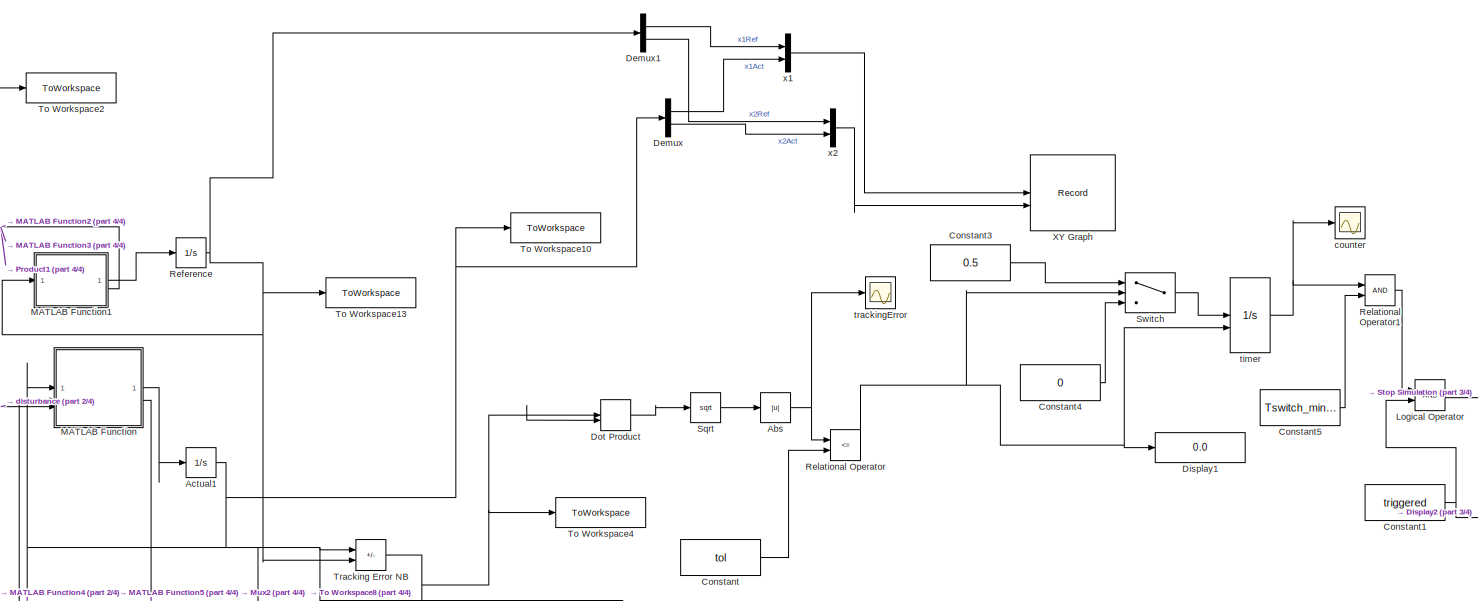
[diagram: root canvas - part 1/4, top center region]
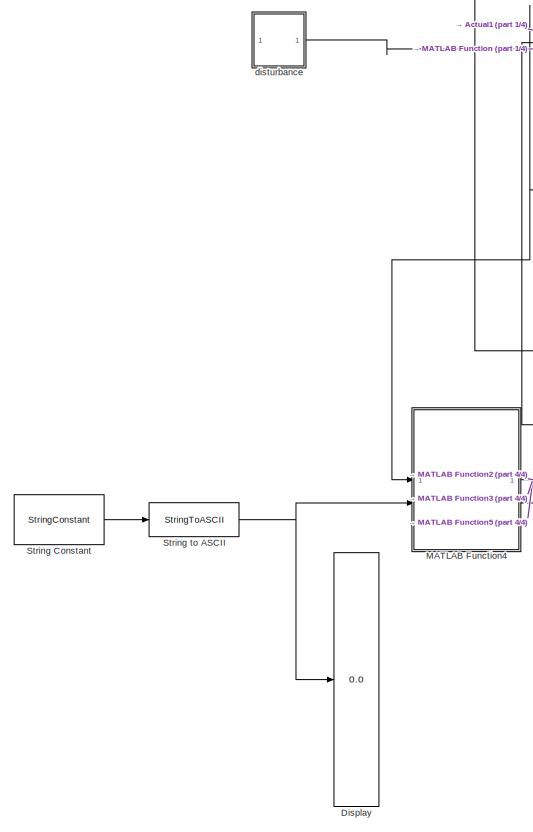
[diagram: root canvas - part 2/4, middle left region]
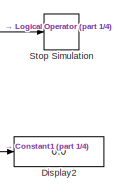
[diagram: root canvas - part 3/4, middle right region]
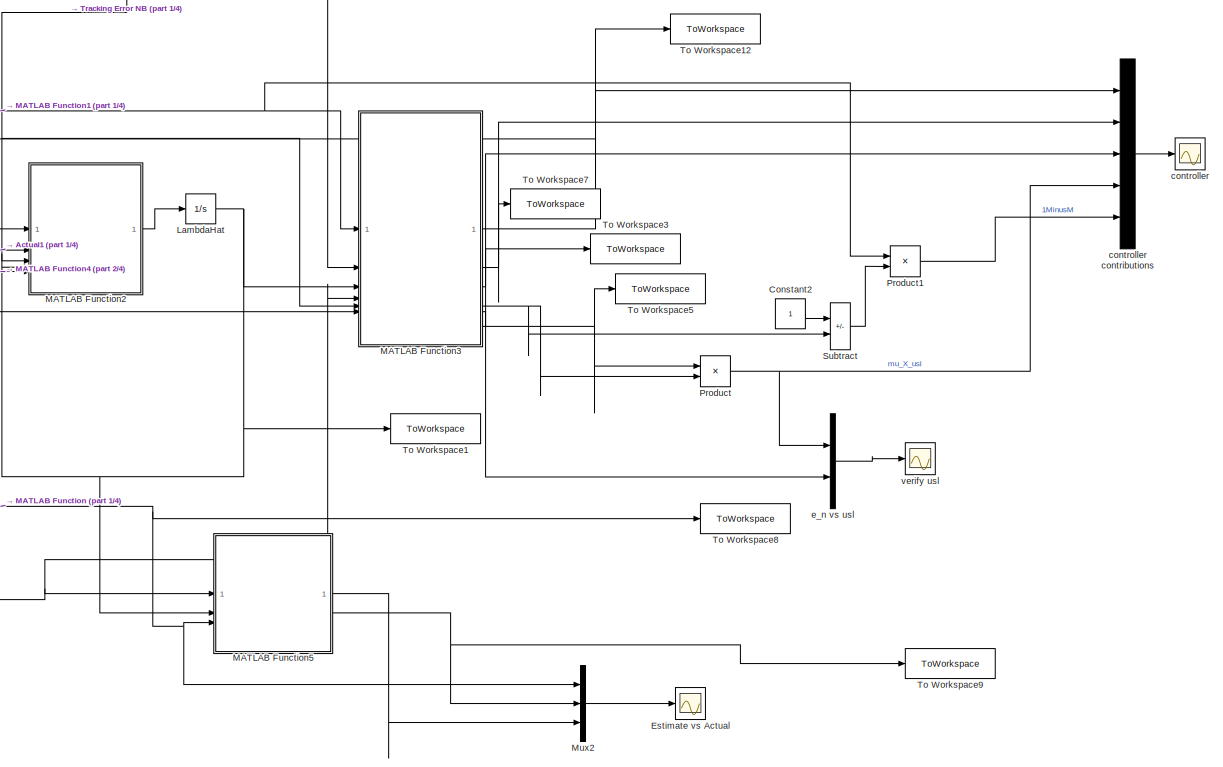
[diagram: root canvas - part 4/4, bottom center region]
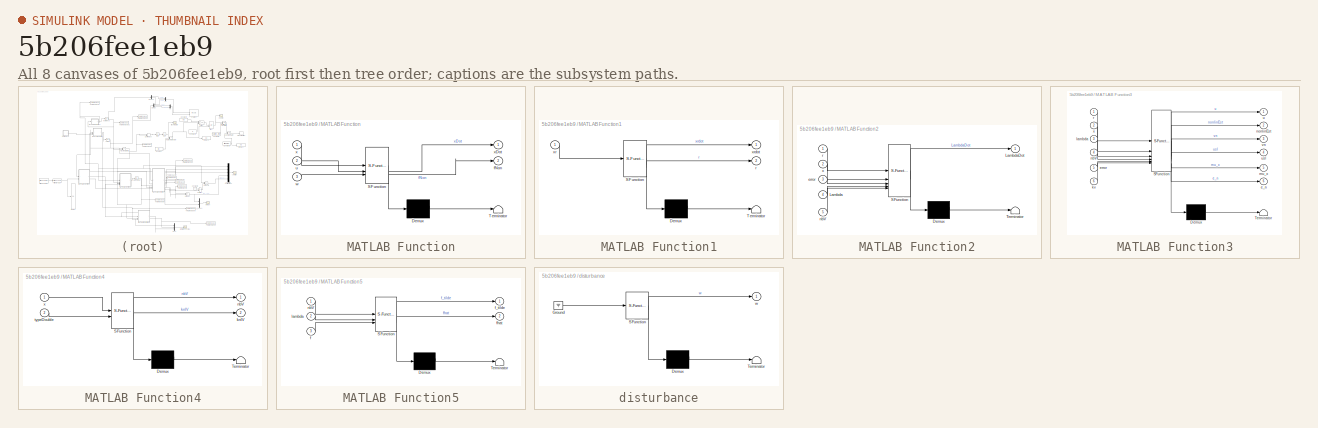
[diagram: thumbnail index - all 8 canvases of the model, root first then tree order]
MODEL slx_5b206fee1eb9
KIND model
CONFIG AbsTol = 1e-4
CONFIG EnableMultiTasking = off
CONFIG FixedStep = 1e-5
CONFIG MaxStep = auto
CONFIG MinStep = auto
CONFIG RelTol = 1e-3
CONFIG SampleTimeConstraint = Unconstrained
CONFIG SolverName = ode45
CONFIG StartTime = 0.0
CONFIG StopTime = 20
BLOCK [Abs] Abs
  SaturateOnIntegerOverflow = off
BLOCK [Integrator] Actual1
  InitialCondition = x0
BLOCK [Constant] Constant
  Value = tol
BLOCK [Constant] Constant1
  Value = triggered
BLOCK [Constant] Constant2
BLOCK [Constant] Constant3
  Value = 0.5
BLOCK [Constant] Constant4
  Value = 0
BLOCK [Constant] Constant5
  Value = Tswitch_min/2
BLOCK [Demux] Demux
  Outputs = 2
BLOCK [Demux] Demux1
  Outputs = 2
BLOCK [Display] Display
  Decimation = 1
BLOCK [Display] Display1
  Decimation = 1
BLOCK [Display] Display2
  Decimation = 1
BLOCK [DotProduct] Dot Product
  OutDataTypeStr = Inherit: Inherit via internal rule
BLOCK [Scope] Estimate vs Actual
  Floating = off
  NumInputPorts = 1
  ScopeSpecificationString = Simulink.scopes.TimeScopeBlockCfg('CurrentConfiguration', extmgr.ConfigurationSet(extmgr.Configuration('Core','General UI',true),extmgr.Configuration('Core','Source UI',true),extmgr.Configuration('Sources','WiredSimulink',true,'DataLoggingVariableName','ScopeData1'),extmgr.Configuration('Visuals','Time Domain',true,'SerializedDisplays',{struct('MinYLimReal','-16.5248','MaxYLimReal','16.65782','YLa...<+1580ch>
BLOCK [Integrator] LambdaHat
  InitialCondition = lambda0
BLOCK [Logic] Logical Operator
  AllPortsSameDT = off
  OutDataTypeStr = boolean
BLOCK [SubSystem] MATLAB Function
  ErrorFcn = Stateflow.Translate.translate
  PermitHierarchicalResolution = ExplicitOnly
  SFBlockType = MATLAB Function
  TreatAsAtomicUnit = on
BLOCK [Demux] MATLAB Function/ Demux 
  Outputs = 1
BLOCK [S-Function] MATLAB Function/ SFunction 
  EnableBusSupport = on
  FunctionName = sf_sfun
  Parameters = A,B,mu,noisy
  PortCounts = [3 3]
  SFcnIsStateOwnerBlock = off
  SFunctionDeploymentMode = off
  Tag = Stateflow S-Function 2
BLOCK [Terminator] MATLAB Function/ Terminator 
BLOCK [Outport] MATLAB Function/fNon
  Port = 2
BLOCK [Inport] MATLAB Function/u
  Port = 2
BLOCK [Inport] MATLAB Function/w
  Port = 3
BLOCK [Inport] MATLAB Function/x
BLOCK [Outport] MATLAB Function/xDot
BLOCK [SubSystem] MATLAB Function1
  ErrorFcn = Stateflow.Translate.translate
  PermitHierarchicalResolution = ExplicitOnly
  SFBlockType = MATLAB Function
  TreatAsAtomicUnit = on
BLOCK [Demux] MATLAB Function1/ Demux 
  Outputs = 1
BLOCK [S-Function] MATLAB Function1/ SFunction 
  EnableBusSupport = on
  FunctionName = sf_sfun
  Parameters = Ar,Br
  PortCounts = [1 3]
  SFcnIsStateOwnerBlock = off
  SFunctionDeploymentMode = off
  Tag = Stateflow S-Function 1
BLOCK [Terminator] MATLAB Function1/ Terminator 
BLOCK [Outport] MATLAB Function1/r
  Port = 2
BLOCK [Inport] MATLAB Function1/xr
BLOCK [Outport] MATLAB Function1/xrdot
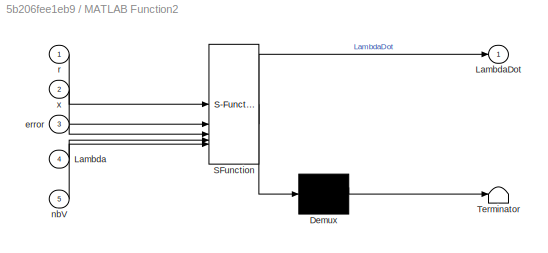
BLOCK [SubSystem] MATLAB Function2
  ErrorFcn = Stateflow.Translate.translate
  PermitHierarchicalResolution = ExplicitOnly
  SFBlockType = MATLAB Function
  TreatAsAtomicUnit = on
BLOCK [Demux] MATLAB Function2/ Demux 
  Outputs = 1
BLOCK [S-Function] MATLAB Function2/ SFunction 
  EnableBusSupport = on
  FunctionName = sf_sfun
  Parameters = B,P,epsilon,gf
  PortCounts = [5 2]
  SFcnIsStateOwnerBlock = off
  SFunctionDeploymentMode = off
  Tag = Stateflow S-Function 3
BLOCK [Terminator] MATLAB Function2/ Terminator 
BLOCK [Inport] MATLAB Function2/Lambda
  Port = 4
BLOCK [Outport] MATLAB Function2/LambdaDot
BLOCK [Inport] MATLAB Function2/error
  Port = 3
BLOCK [Inport] MATLAB Function2/nbV
  Port = 5
BLOCK [Inport] MATLAB Function2/r
BLOCK [Inport] MATLAB Function2/x
  Port = 2
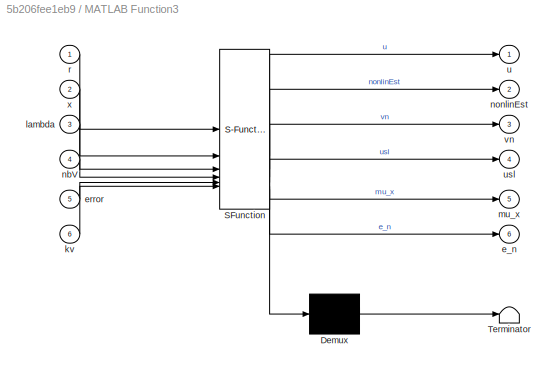
BLOCK [SubSystem] MATLAB Function3
  ErrorFcn = Stateflow.Translate.translate
  PermitHierarchicalResolution = ExplicitOnly
  SFBlockType = MATLAB Function
  TreatAsAtomicUnit = on
BLOCK [Demux] MATLAB Function3/ Demux 
  Outputs = 1
BLOCK [S-Function] MATLAB Function3/ SFunction 
  EnableBusSupport = on
  FunctionName = sf_sfun
  Parameters = B,P,Ro,del,epsilon,kx,norm_f,rmax
  PortCounts = [6 7]
  SFcnIsStateOwnerBlock = off
  SFunctionDeploymentMode = off
  Tag = Stateflow S-Function 4
BLOCK [Terminator] MATLAB Function3/ Terminator 
BLOCK [Outport] MATLAB Function3/e_n
  Port = 6
BLOCK [Inport] MATLAB Function3/error
  Port = 5
BLOCK [Inport] MATLAB Function3/kv
  Port = 6
BLOCK [Inport] MATLAB Function3/lambda
  Port = 3
BLOCK [Outport] MATLAB Function3/mu_x
  Port = 5
BLOCK [Inport] MATLAB Function3/nbV
  Port = 4
BLOCK [Outport] MATLAB Function3/nonlinEst
  Port = 2
BLOCK [Inport] MATLAB Function3/r
BLOCK [Outport] MATLAB Function3/u
BLOCK [Outport] MATLAB Function3/usl
  Port = 4
BLOCK [Outport] MATLAB Function3/vn
  Port = 3
BLOCK [Inport] MATLAB Function3/x
  Port = 2
BLOCK [SubSystem] MATLAB Function4
  ErrorFcn = Stateflow.Translate.translate
  PermitHierarchicalResolution = ExplicitOnly
  SFBlockType = MATLAB Function
  TreatAsAtomicUnit = on
BLOCK [Demux] MATLAB Function4/ Demux 
  Outputs = 1
BLOCK [S-Function] MATLAB Function4/ SFunction 
  EnableBusSupport = on
  FunctionName = sf_sfun
  Parameters = K,V,centers,par,scale
  PortCounts = [2 3]
  SFcnIsStateOwnerBlock = off
  SFunctionDeploymentMode = off
  Tag = Stateflow S-Function 5
BLOCK [Terminator] MATLAB Function4/ Terminator 
BLOCK [Outport] MATLAB Function4/knlV
  Port = 2
BLOCK [Outport] MATLAB Function4/nbV
BLOCK [Inport] MATLAB Function4/typeDouble
  Port = 2
BLOCK [Inport] MATLAB Function4/x
BLOCK [SubSystem] MATLAB Function5
  ErrorFcn = Stateflow.Translate.translate
  PermitHierarchicalResolution = ExplicitOnly
  SFBlockType = MATLAB Function
  TreatAsAtomicUnit = on
BLOCK [Demux] MATLAB Function5/ Demux 
  Outputs = 1
BLOCK [S-Function] MATLAB Function5/ SFunction 
  EnableBusSupport = on
  FunctionName = sf_sfun
  PortCounts = [3 3]
  SFcnIsStateOwnerBlock = off
  SFunctionDeploymentMode = off
  Tag = Stateflow S-Function 6
BLOCK [Terminator] MATLAB Function5/ Terminator 
BLOCK [Inport] MATLAB Function5/f
  Port = 3
BLOCK [Outport] MATLAB Function5/f_tilde
BLOCK [Outport] MATLAB Function5/fhat
  Port = 2
BLOCK [Inport] MATLAB Function5/lambda
  Port = 2
BLOCK [Inport] MATLAB Function5/nbV
BLOCK [Mux] Mux2
  DisplayOption = bar
  Inputs = 3
BLOCK [Product] Product
BLOCK [Product] Product1
BLOCK [Integrator] Reference
  InitialCondition = xr0
BLOCK [RelationalOperator] Relational Operator
  InputSameDT = off
  Operator = <=
  OutDataTypeStr = boolean
  RndMeth = Simplest
BLOCK [RelationalOperator] Relational Operator1
  InputSameDT = off
  OutDataTypeStr = boolean
  RndMeth = Simplest
BLOCK [Sqrt] Sqrt
BLOCK [Stop] Stop Simulation
BLOCK [StringConstant] String Constant
  String = type
BLOCK [StringToASCII] String to ASCII
BLOCK [Sum] Subtract
  IconShape = rectangular
  Inputs = +-
BLOCK [Switch] Switch
  Criteria = u2 ~= 0
  InputSameDT = off
  SaturateOnIntegerOverflow = off
BLOCK [ToWorkspace] To Workspace1
  FixptAsFi = on
  MaxDataPoints = inf
  SampleTime = -1
  SaveFormat = Timeseries
  VariableName = lambdaHat
BLOCK [ToWorkspace] To Workspace10
  FixptAsFi = on
  MaxDataPoints = inf
  SampleTime = -1
  SaveFormat = Timeseries
  VariableName = x
BLOCK [ToWorkspace] To Workspace12
  FixptAsFi = on
  MaxDataPoints = inf
  SampleTime = -1
  SaveFormat = Timeseries
  VariableName = u
BLOCK [ToWorkspace] To Workspace13
  FixptAsFi = on
  MaxDataPoints = inf
  SampleTime = -1
  SaveFormat = Timeseries
  VariableName = xr
BLOCK [ToWorkspace] To Workspace2
  FixptAsFi = on
  MaxDataPoints = inf
  SampleTime = -1
  SaveFormat = Timeseries
  VariableName = reference
BLOCK [ToWorkspace] To Workspace3
  FixptAsFi = on
  MaxDataPoints = inf
  SampleTime = -1
  SaveFormat = Timeseries
  VariableName = vn
BLOCK [ToWorkspace] To Workspace4
  FixptAsFi = on
  MaxDataPoints = inf
  SampleTime = -1
  SaveFormat = Timeseries
  VariableName = trackingError
BLOCK [ToWorkspace] To Workspace5
  FixptAsFi = on
  MaxDataPoints = inf
  SampleTime = -1
  SaveFormat = Timeseries
  VariableName = uSL
BLOCK [ToWorkspace] To Workspace7
  FixptAsFi = on
  MaxDataPoints = inf
  SampleTime = -1
  SaveFormat = Timeseries
  VariableName = nonCo
BLOCK [ToWorkspace] To Workspace8
  FixptAsFi = on
  MaxDataPoints = inf
  SampleTime = -1
  SaveFormat = Timeseries
  VariableName = fNon
BLOCK [ToWorkspace] To Workspace9
  FixptAsFi = on
  MaxDataPoints = inf
  SampleTime = -1
  SaveFormat = Timeseries
  VariableName = fhat
BLOCK [Sum] Tracking Error NB
  IconShape = rectangular
  Inputs = +-
BLOCK [Record] XY Graph
  CompatibilityTag = XY
  FileSettingsInternal = {"entries":[{"content":{"excelSettings":{"content":{},"type":"Streamout.ExcelSettings"}},"type":"Streamout.FileSettingStorage","uuid":""}],"packageUris":["http:\/\/schema.mathworks.com\/mf0\/streamout_blocks\/R2020a"],"version":"1.0"}
  Layout = [1 1]
  SignalsInternal = {"entries":[{"content":{"signals":[{"content":{"blockPath":[],"dimensions":[2],"domain":"","hasChildren":true,"lineColor":"#77ac30","port":1,"signalID":25,"signalName":"x1"},"type":"RecordBlkView.Signal","uuid":""},{"content":{"blockPath":[],"channel":[1],"dimensions":[2],"domain":"","lineColor":"#b746ff","parentID":25,"plots":[1],"port":1,"signalID":26,"signalName":"x1"},"type":"RecordBlkView.Sig...<+944ch>
  VisualizationBindings = {"xyplotplugin":{"info":[{"series":[{"bindingParametersList":[{"parameter":"X-Axis","signalID":27,"signalName":"x1(2)"},{"parameter":"Y-Axis","signalID":34,"signalName":"x2(2)"}],"seriesID":29538},{"bindingParametersList":[{"parameter":"X-Axis","signalID":26,"signalName":"x1(1)"},{"parameter":"Y-Axis","signalID":33,"signalName":"x2(1)"}],"seriesID":30905}],"subplotID":1}]}}
BLOCK [Scope] controller
  Floating = off
  NumInputPorts = 1
  ScopeSpecificationString = Simulink.scopes.TimeScopeBlockCfg('CurrentConfiguration', extmgr.ConfigurationSet(extmgr.Configuration('Core','General UI',true),extmgr.Configuration('Core','Source UI',true),extmgr.Configuration('Sources','WiredSimulink',true,'DataLoggingVariableName','ScopeData1'),extmgr.Configuration('Visuals','Time Domain',true,'SerializedDisplays',{struct('MinYLimReal','-42.03495','MaxYLimReal','24.32319','YL...<+1646ch>
BLOCK [Mux] controller contributions
  DisplayOption = bar
  Inputs = 5
BLOCK [Scope] counter
  Floating = off
  NumInputPorts = 1
  ScopeSpecificationString = Simulink.scopes.TimeScopeBlockCfg('CurrentConfiguration', extmgr.ConfigurationSet(extmgr.Configuration('Core','General UI',true,'FigureColor',[1 1 1]),extmgr.Configuration('Core','Source UI',true),extmgr.Configuration('Sources','WiredSimulink',true,'DataLoggingVariableName','ScopeData2'),extmgr.Configuration('Visuals','Time Domain',true,'SerializedDisplays',{struct('MinYLimReal','-0.3449','MaxYLim...<+1979ch>
BLOCK [SubSystem] disturbance
  ErrorFcn = Stateflow.Translate.translate
  PermitHierarchicalResolution = ExplicitOnly
  SFBlockType = MATLAB Function
  TreatAsAtomicUnit = on
BLOCK [Demux] disturbance/ Demux 
  Outputs = 1
BLOCK [Ground] disturbance/ Ground 
BLOCK [S-Function] disturbance/ SFunction 
  EnableBusSupport = on
  FunctionName = sf_sfun
  Parameters = delta
  PortCounts = [1 2]
  SFcnIsStateOwnerBlock = off
  SFunctionDeploymentMode = off
  Tag = Stateflow S-Function 7
BLOCK [Terminator] disturbance/ Terminator 
BLOCK [Outport] disturbance/w
BLOCK [Mux] e_n vs usl
  DisplayOption = bar
  Inputs = 2
BLOCK [Integrator] timer
  ExternalReset = falling
BLOCK [Scope] trackingError
  Floating = off
  NumInputPorts = 1
  ScopeSpecificationString = Simulink.scopes.TimeScopeBlockCfg('CurrentConfiguration', extmgr.ConfigurationSet(extmgr.Configuration('Core','General UI',true,'FigureColor',[1 1 1]),extmgr.Configuration('Core','Source UI',true),extmgr.Configuration('Sources','WiredSimulink',true,'DataLoggingVariableName','ScopeData1'),extmgr.Configuration('Visuals','Time Domain',true,'SerializedDisplays',{struct('MinYLimReal','-0.1244','MaxYLim...<+1978ch>
BLOCK [Scope] verify usl
  Floating = off
  NumInputPorts = 1
  ScopeSpecificationString = Simulink.scopes.TimeScopeBlockCfg('CurrentConfiguration', extmgr.ConfigurationSet(extmgr.Configuration('Core','General UI',true),extmgr.Configuration('Core','Source UI',true),extmgr.Configuration('Sources','WiredSimulink',true,'DataLoggingVariableName','ScopeData2'),extmgr.Configuration('Visuals','Time Domain',true,'SerializedDisplays',{struct('MinYLimReal','-13.20276','MaxYLimReal','11.48678','YL...<+1560ch>
BLOCK [Mux] x1
  DisplayOption = bar
  Inputs = 2
BLOCK [Mux] x2
  DisplayOption = bar
  Inputs = 2
NET Abs:1 -> Relational Operator:1, trackingError:1
NET Actual1:1 -> Demux:1, MATLAB Function2:2, MATLAB Function3:2, MATLAB Function4:1, MATLAB Function:1, To Workspace10:1, Tracking Error NB:1
NET Constant1:1 -> Display2:1, Logical Operator:2
LINE Constant2:1 -> Subtract:1
LINE Constant3:1 -> Switch:1
LINE Constant4:1 -> Switch:3
LINE Constant5:1 -> Relational Operator1:2
LINE Constant:1 -> Relational Operator:2
LINE Demux1:1 -> x1:1
LINE Demux1:2 -> x2:1
LINE Demux:1 -> x1:2
LINE Demux:2 -> x2:2
LINE Dot Product:1 -> Sqrt:1
NET LambdaHat:1 -> MATLAB Function2:4, MATLAB Function3:3, MATLAB Function5:2, To Workspace1:1
LINE Logical Operator:1 -> Stop Simulation:1
LINE MATLAB Function1:1 -> Reference:1
NET MATLAB Function1:2 -> MATLAB Function2:1, MATLAB Function3:1, Product1:1, To Workspace2:1
LINE MATLAB Function2:1 -> LambdaHat:1
NET MATLAB Function3:1 -> MATLAB Function:2, To Workspace12:1, controller contributions:1
NET MATLAB Function3:2 -> To Workspace7:1, controller contributions:2
NET MATLAB Function3:3 -> To Workspace3:1, controller contributions:3
NET MATLAB Function3:4 -> Product:1, To Workspace5:1
NET MATLAB Function3:5 -> Product:2, Subtract:2
LINE MATLAB Function3:6 -> e_n vs usl:2
NET MATLAB Function4:1 -> MATLAB Function2:5, MATLAB Function3:4, MATLAB Function5:1
LINE MATLAB Function4:2 -> MATLAB Function3:6
LINE MATLAB Function5:1 -> Mux2:3
NET MATLAB Function5:2 -> Mux2:2, To Workspace9:1
LINE MATLAB Function:1 -> Actual1:1
NET MATLAB Function:2 -> MATLAB Function5:3, Mux2:1, To Workspace8:1
LINE Mux2:1 -> Estimate vs Actual:1
LINE Product1:1 -> controller contributions:5
NET Product:1 -> controller contributions:4, e_n vs usl:1
NET Reference:1 -> Demux1:1, MATLAB Function1:1, To Workspace13:1, Tracking Error NB:2
LINE Relational Operator1:1 -> Logical Operator:1
NET Relational Operator:1 -> Display1:1, Switch:2, timer:2
LINE Sqrt:1 -> Abs:1
LINE String Constant:1 -> String to ASCII:1
NET String to ASCII:1 -> Display:1, MATLAB Function4:2
LINE Subtract:1 -> Product1:2
LINE Switch:1 -> timer:1
NET Tracking Error NB:1 -> Dot Product:1, Dot Product:2, MATLAB Function2:3, MATLAB Function3:5, To Workspace4:1
LINE controller contributions:1 -> controller:1
LINE disturbance:1 -> MATLAB Function:3
LINE e_n vs usl:1 -> verify usl:1
NET timer:1 -> Relational Operator1:1, counter:1
LINE x1:1 -> XY Graph:1
LINE x2:1 -> XY Graph:2
note: NET lines group one-source signal fan-out (src -> all destinations, sorted); 1:1 wires keep LINE
CHART MATLAB Function3 states=1 transitions=1
  STATE_LABEL 'eML_blk_kernel()'
  STATE_LABEL "SCRIPT:\nfunction [u,nonlinEst,vn,usl,mu_x,e_n] = controller(r, x, lambda, nbV,epsilon,B,error,kv, del, P,norm_f,Ro,rmax,kx)\npow_x = real(sqrt(complex(1 - nbV'*nbV)));\n\ne_n = pow_x*norm_f;\n%% RKHS smooth switching function\n\nif abs(B'*P*error) > epsilon\n    vn = sign(B'*P*error)*e_n;\nelse\n    vn = 1/epsilon*B'*P*error*e_n;\nend\n\n\n%% RKHS Deadzone\n% vn = 0;\n%% State Limiting\nRB = Ro;\nmu_x = max([0,min...<+223ch>"
CHART MATLAB Function4 states=1 transitions=1
  STATE_LABEL 'eML_blk_kernel()'
  STATE_LABEL 'SCRIPT:\nfunction [nbV,knlV]  = Knl_Eval(x,centers,typeDouble, scale, par,K,V)\n    xC = [x(1),x(2)];\n    type = char(typeDouble(typeDouble~=0));\n    knlV = real(kermat(centers,xC,type,par,scale));\n    N = size(centers,1);\n    z = diag(K);\n    v_x = zeros(N,1);\n    P = sqrt(K(1,1));\n\n    v_x(1) = knlV(1)/P;\n%     \n%     V = zeros(N,N);\n%     if N > 1\n%         V(:,1) = K(:,1)/P;\n%         w = V(:,1)...<+1126ch>'
CHART MATLAB Function5 states=1 transitions=1
  STATE_LABEL 'eML_blk_kernel()'
  STATE_LABEL "SCRIPT:\nfunction [f_tilde,fhat]  = functionError(nbV,lambda,f)\nfhat = -lambda'*nbV;\nf_tilde = f-fhat;\n\n\n\n\n"
CHART disturbance states=1 transitions=1
  STATE_LABEL 'eML_blk_kernel()'
  STATE_LABEL 'SCRIPT:\nfunction w   = plant(delta)\n% \nw = 0.5*rand;\n\n'
CHART MATLAB Function1 states=1 transitions=1
  STATE_LABEL 'eML_blk_kernel()'
  STATE_LABEL 'SCRIPT:\nfunction [xrdot,r] = reference(xr,Ar, Br)\nr = xr(2);\nxrv = [xr(1);xr(2)];\nxrdot = Ar*xrv+Br*r;\n'
CHART MATLAB Function states=1 transitions=1
  STATE_LABEL 'eML_blk_kernel()'
  STATE_LABEL "SCRIPT:\nfunction [xDot,fNon]  = plant(x,u,A, B,w,mu,noisy)\n% \n% targetKnlV = real(kermat(interps,x,'ms',targetNu-Dim/2,targetScale));\n% f = targetCoefs'*targetKnlV;\nxv = [x(1);x(2)];\n\n% targetKnlV_NB = real(kermat(interps,xNB,'ms',targetNu-Dim/2,targetScale));\n% fNB = targetCoefs'*targetKnlV_NB;\nfNon = (1+mu)*x(2)-mu*x(1)^2*x(2);\n\nif noisy\n    d_t=[0.1*tanh(x(1)*x(2)) ; 0];\nelse\n    d_t=[0;0];\nend...<+30ch>"
CHART MATLAB Function2 states=1 transitions=1
  STATE_LABEL 'eML_blk_kernel()'
  STATE_LABEL "SCRIPT:\nfunction LambdaDot  = evo_law(gf, r, x, error,  Lambda,  nbV,epsilon,P, B)\nsigma = zeros(size(error,1),1);\n% for jj = 1:size(error,1)\n%     if abs(error(jj)) < epsilon\n%         sigma(jj) = error(jj)/epsilon;\n%     else\n%         sigma(jj) = sign(error(jj));\n%     end\n% end\n\n%LambdaDot=-double(norm(error,2)>0.7*epsilon)*gf*nbV*B'*P*(error-epsilon*sigma);\nLambdaDot=-gf*nbV*B'*P*(error-epsil...<+17ch>"
CHART  states=0 transitions=0
CHART  states=0 transitions=0
CHART  states=0 transitions=0
CHART  states=0 transitions=0
CHART  states=0 transitions=0
CHART  states=0 transitions=0
CHART  states=0 transitions=0
